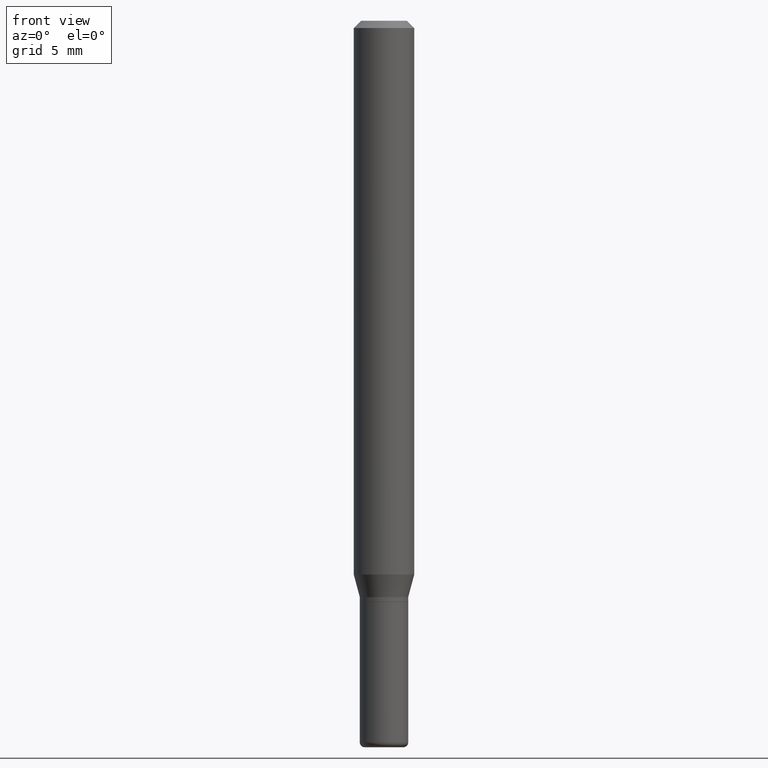
[diagram: clean part render]
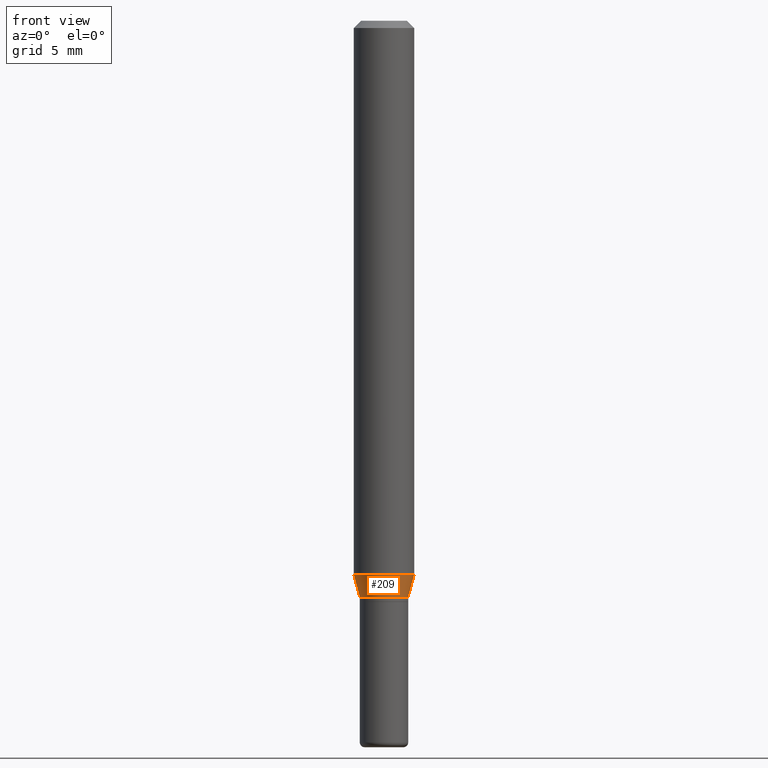
[diagram: same view with one face highlighted and labeled with its STEP entity id]
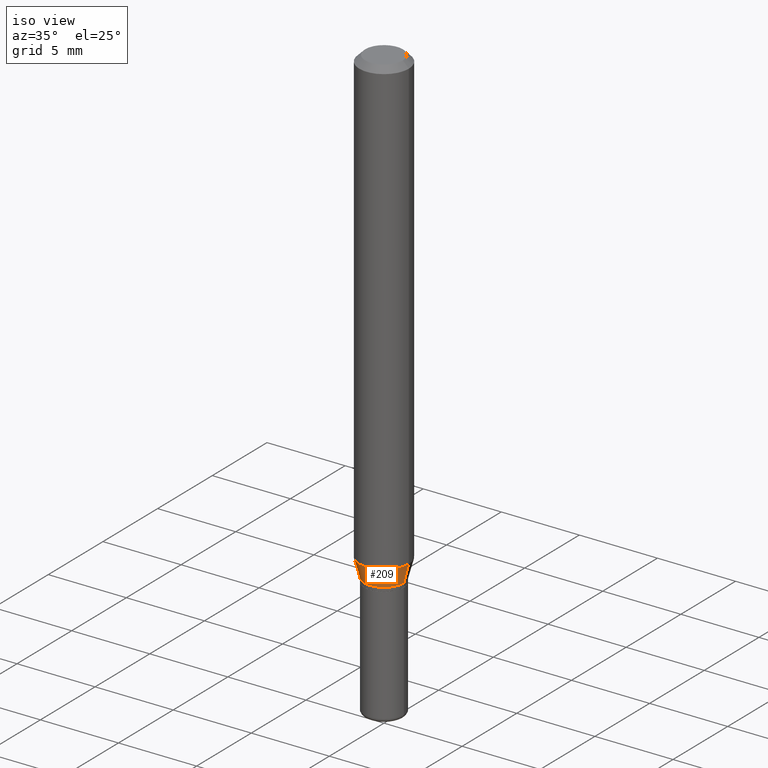
[diagram: same view with one face highlighted and labeled with its STEP entity id]
A machine part, front view. The second image highlights one B-rep face of the part: STEP entity #209.
A second angle (iso view) of the same face is appended — the face is thin or edge-on in the first view.
In plain terms, the highlighted conical surface has half-angle 15 deg.
Its self-contained STEP definition (entity closure, byte-faithful):
#11 = CARTESIAN_POINT ( 'NONE',  ( 2.910107879360313156E-29, -4.154862793223344154E-15, -1.190000000000000169 ) ) ;
#17 = FACE_OUTER_BOUND ( 'NONE', #476, .T. ) ;
#23 = ORIENTED_EDGE ( 'NONE', *, *, #155, .T. ) ;
#38 = AXIS2_PLACEMENT_3D ( 'NONE', #276, #395, #358 ) ;
#42 = CARTESIAN_POINT ( 'NONE',  ( 0.06250000000000000000, -4.428418138700719093E-15, -1.143349364905388965 ) ) ;
#55 = EDGE_CURVE ( 'NONE', #410, #67, #238, .T. ) ;
#59 = CARTESIAN_POINT ( 'NONE',  ( -0.04999999999999996114, -3.673742593419279671E-15, -1.190000000000000169 ) ) ;
#67 = VERTEX_POINT ( 'NONE', #42 ) ;
#70 = EDGE_CURVE ( 'NONE', #175, #322, #157, .T. ) ;
#98 = CARTESIAN_POINT ( 'NONE',  ( 2.910107879360313156E-29, -4.154862793223344154E-15, -1.190000000000000169 ) ) ;
#109 = AXIS2_PLACEMENT_3D ( 'NONE', #11, #285, #138 ) ;
#138 = DIRECTION ( 'NONE',  ( 1.000000000000000000, -6.982962677686260400E-15, 0.000000000000000000 ) ) ;
#155 = EDGE_CURVE ( 'NONE', #175, #410, #229, .T. ) ;
#157 = LINE ( 'NONE', #478, #309 ) ;
#175 = VERTEX_POINT ( 'NONE', #59 ) ;
#183 = VECTOR ( 'NONE', #437, 39.37007874015748143 ) ;
#209 = ADVANCED_FACE ( 'NONE', ( #17 ), #360, .T. ) ;
#220 = CARTESIAN_POINT ( 'NONE',  ( 0.04999999999999996114, -4.504010927107656701E-15, -1.190000000000000169 ) ) ;
#229 = CIRCLE ( 'NONE', #109, 0.04999999999999996114 ) ;
#235 = ORIENTED_EDGE ( 'NONE', *, *, #55, .T. ) ;
#238 = LINE ( 'NONE', #273, #183 ) ;
#254 = DIRECTION ( 'NONE',  ( -2.445468806185136597E-29, 3.491481338843145583E-15, 1.000000000000000000 ) ) ;
#273 = CARTESIAN_POINT ( 'NONE',  ( 0.04999999999999996114, -4.504010927107656701E-15, -1.190000000000000169 ) ) ;
#276 = CARTESIAN_POINT ( 'NONE',  ( 2.796025206447715578E-29, -3.991982971345327424E-15, -1.143349364905388965 ) ) ;
#285 = DIRECTION ( 'NONE',  ( -2.445468806185136597E-29, 3.491481338843145583E-15, 1.000000000000000000 ) ) ;
#309 = VECTOR ( 'NONE', #430, 39.37007874015748143 ) ;
#322 = VERTEX_POINT ( 'NONE', #507 ) ;
#326 = ORIENTED_EDGE ( 'NONE', *, *, #70, .F. ) ;
#334 = AXIS2_PLACEMENT_3D ( 'NONE', #98, #254, #494 ) ;
#358 = DIRECTION ( 'NONE',  ( 1.000000000000000000, -6.982962677686262766E-15, 0.000000000000000000 ) ) ;
#360 = CONICAL_SURFACE ( 'NONE', #334, 0.04999999999999996114, 0.2617993877991490748 ) ;
#361 = CIRCLE ( 'NONE', #38, 0.06250000000000000000 ) ;
#368 = ORIENTED_EDGE ( 'NONE', *, *, #510, .F. ) ;
#395 = DIRECTION ( 'NONE',  ( -2.445468806185136597E-29, 3.491481338843145583E-15, 1.000000000000000000 ) ) ;
#410 = VERTEX_POINT ( 'NONE', #220 ) ;
#430 = DIRECTION ( 'NONE',  ( -0.2588190451025204064, 5.211531920934543942E-15, 0.9659258262890684232 ) ) ;
#437 = DIRECTION ( 'NONE',  ( 0.2588190451025204064, 1.565188264969629659E-15, 0.9659258262890684232 ) ) ;
#476 = EDGE_LOOP ( 'NONE', ( #326, #23, #235, #368 ) ) ;
#478 = CARTESIAN_POINT ( 'NONE',  ( -0.04999999999999996114, -3.799591425343293746E-15, -1.190000000000000169 ) ) ;
#494 = DIRECTION ( 'NONE',  ( 1.000000000000000000, -6.982962677686260400E-15, 0.000000000000000000 ) ) ;
#507 = CARTESIAN_POINT ( 'NONE',  ( -0.06250000000000000000, -3.547893761495265202E-15, -1.143349364905388965 ) ) ;
#510 = EDGE_CURVE ( 'NONE', #322, #67, #361, .T. ) ;